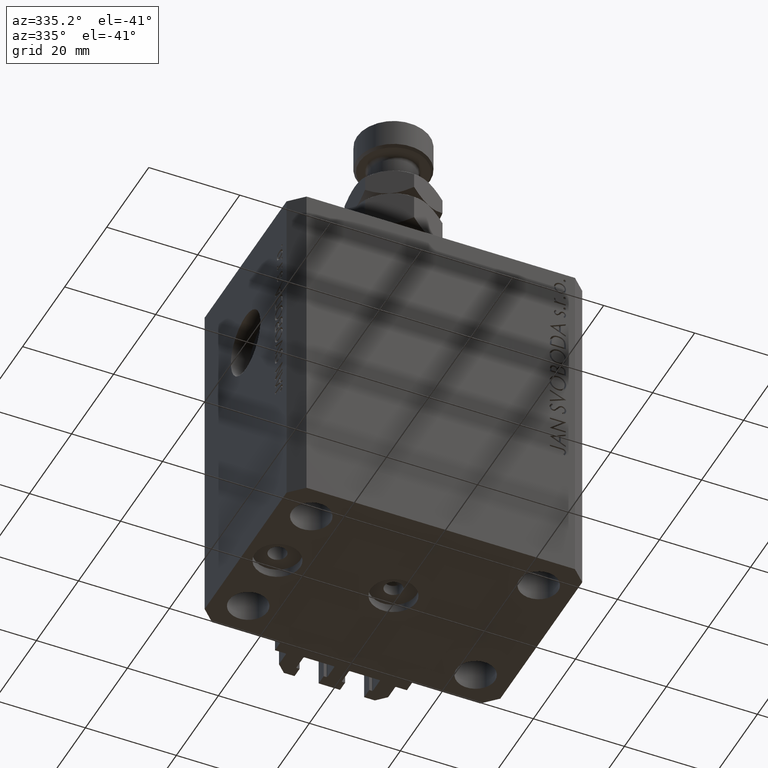
[diagram: clean part render]
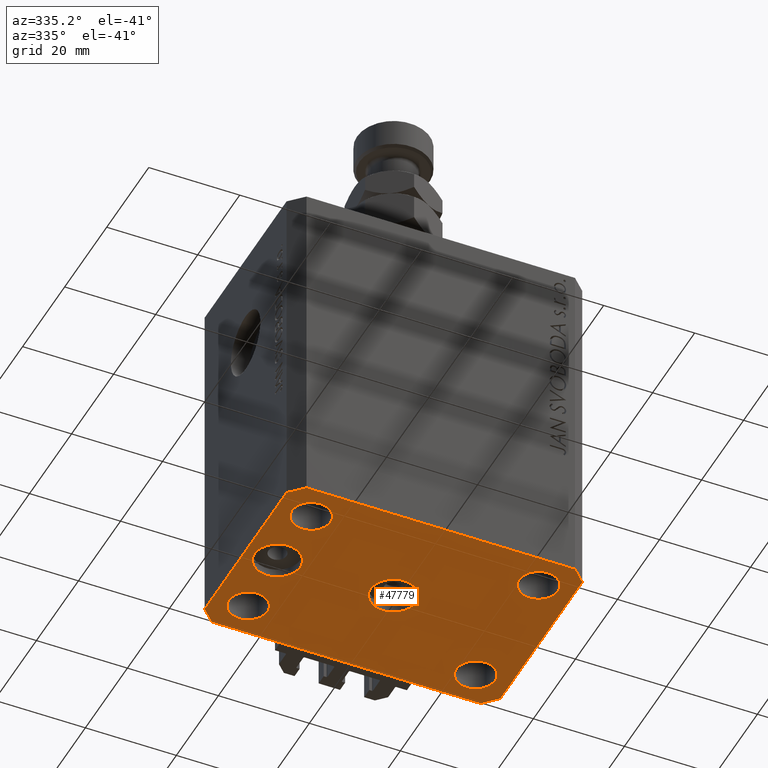
[diagram: same view with one face highlighted and labeled with its STEP entity id]
A machine part, auxiliary view. The second image highlights one B-rep face of the part: STEP entity #47779.
In plain terms, the highlighted planar face has unit normal (0, 0, 1).
Its self-contained STEP definition (entity closure, byte-faithful):
#92 = ORIENTED_EDGE ( 'NONE', *, *, #10208, .F. ) ;
#219 = DIRECTION ( 'NONE',  ( 1.000000000000000000, 1.176083712526788232E-16, 0.000000000000000000 ) ) ;
#375 = AXIS2_PLACEMENT_3D ( 'NONE', #32494, #9163, #9887 ) ;
#401 = EDGE_CURVE ( 'NONE', #1034, #27145, #42181, .T. ) ;
#1034 = VERTEX_POINT ( 'NONE', #48444 ) ;
#1094 = AXIS2_PLACEMENT_3D ( 'NONE', #18456, #33620, #14254 ) ;
#1602 = EDGE_CURVE ( 'NONE', #30552, #33709, #33550, .T. ) ;
#1994 = DIRECTION ( 'NONE',  ( -0.000000000000000000, -0.000000000000000000, -1.000000000000000000 ) ) ;
#2092 = ORIENTED_EDGE ( 'NONE', *, *, #17893, .F. ) ;
#2633 = AXIS2_PLACEMENT_3D ( 'NONE', #44843, #7336, #28950 ) ;
#2817 = AXIS2_PLACEMENT_3D ( 'NONE', #25323, #17606, #23005 ) ;
#3376 = EDGE_CURVE ( 'NONE', #33709, #30552, #10728, .T. ) ;
#3381 = ORIENTED_EDGE ( 'NONE', *, *, #401, .F. ) ;
#3778 = CIRCLE ( 'NONE', #47415, 4.249999999976314058 ) ;
#3952 = DIRECTION ( 'NONE',  ( -0.000000000000000000, -0.000000000000000000, -1.000000000000000000 ) ) ;
#4201 = LINE ( 'NONE', #11156, #36306 ) ;
#4235 = CARTESIAN_POINT ( 'NONE',  ( 24.99999999999999289, -15.00000000000000355, -77.00000000000000000 ) ) ;
#5170 = FACE_BOUND ( 'NONE', #16174, .T. ) ;
#5366 = VERTEX_POINT ( 'NONE', #27402 ) ;
#5476 = EDGE_LOOP ( 'NONE', ( #45657, #42199 ) ) ;
#5540 = LINE ( 'NONE', #32341, #40786 ) ;
#5891 = FACE_BOUND ( 'NONE', #17933, .T. ) ;
#5966 = CIRCLE ( 'NONE', #2817, 4.999999999996659561 ) ;
#6205 = AXIS2_PLACEMENT_3D ( 'NONE', #11644, #15850, #7409 ) ;
#6833 = VERTEX_POINT ( 'NONE', #30656 ) ;
#7314 = EDGE_CURVE ( 'NONE', #41250, #8508, #15872, .T. ) ;
#7336 = DIRECTION ( 'NONE',  ( -0.000000000000000000, -0.000000000000000000, -1.000000000000000000 ) ) ;
#7409 = DIRECTION ( 'NONE',  ( 1.000000000000000000, 0.000000000000000000, 0.000000000000000000 ) ) ;
#7559 = VECTOR ( 'NONE', #19885, 1000.000000000000000 ) ;
#7563 = ORIENTED_EDGE ( 'NONE', *, *, #35451, .F. ) ;
#8320 = CIRCLE ( 'NONE', #21800, 4.999999999996659561 ) ;
#8324 = CARTESIAN_POINT ( 'NONE',  ( -29.25000000002137668, 14.99999999999999645, -77.00000000000000000 ) ) ;
#8443 = DIRECTION ( 'NONE',  ( 1.000000000000000000, 0.000000000000000000, 0.000000000000000000 ) ) ;
#8508 = VERTEX_POINT ( 'NONE', #15582 ) ;
#8696 = CIRCLE ( 'NONE', #34086, 4.249999999976314058 ) ;
#8717 = CARTESIAN_POINT ( 'NONE',  ( -32.49999999999650413, 19.49999999999949907, -77.00000000000000000 ) ) ;
#8896 = VECTOR ( 'NONE', #36292, 1000.000000000000000 ) ;
#9015 = AXIS2_PLACEMENT_3D ( 'NONE', #21564, #1994, #32026 ) ;
#9163 = DIRECTION ( 'NONE',  ( -0.000000000000000000, -0.000000000000000000, -1.000000000000000000 ) ) ;
#9251 = DIRECTION ( 'NONE',  ( -0.000000000000000000, -0.000000000000000000, -1.000000000000000000 ) ) ;
#9887 = DIRECTION ( 'NONE',  ( 1.000000000000000000, 0.000000000000000000, 0.000000000000000000 ) ) ;
#10208 = EDGE_CURVE ( 'NONE', #27145, #5366, #4201, .T. ) ;
#10728 = CIRCLE ( 'NONE', #47220, 4.250000000021375790 ) ;
#11156 = CARTESIAN_POINT ( 'NONE',  ( 29.49999999999650413, -22.49999999999949196, -77.00000000000000000 ) ) ;
#11404 = EDGE_CURVE ( 'NONE', #40354, #25837, #46598, .T. ) ;
#11524 = LINE ( 'NONE', #40834, #26108 ) ;
#11644 = CARTESIAN_POINT ( 'NONE',  ( -24.99999999999999289, -15.00000000000000355, -77.00000000000000000 ) ) ;
#11990 = VERTEX_POINT ( 'NONE', #30265 ) ;
#12294 = CIRCLE ( 'NONE', #13102, 5.000000000000000000 ) ;
#12465 = VERTEX_POINT ( 'NONE', #35656 ) ;
#12645 = DIRECTION ( 'NONE',  ( -0.7071067811865344721, 0.7071067811865606734, 0.000000000000000000 ) ) ;
#13102 = AXIS2_PLACEMENT_3D ( 'NONE', #41244, #20032, #16068 ) ;
#13113 = FACE_OUTER_BOUND ( 'NONE', #40295, .T. ) ;
#13532 = CARTESIAN_POINT ( 'NONE',  ( 5.000000000000000000, 6.123233995736765296E-16, -77.00000000000000000 ) ) ;
#13797 = VECTOR ( 'NONE', #219, 1000.000000000000000 ) ;
#13969 = ORIENTED_EDGE ( 'NONE', *, *, #26927, .F. ) ;
#14254 = DIRECTION ( 'NONE',  ( 1.000000000000000000, 0.000000000000000000, 0.000000000000000000 ) ) ;
#14815 = CARTESIAN_POINT ( 'NONE',  ( 0.000000000000000000, 0.000000000000000000, -77.00000000000000000 ) ) ;
#14848 = CARTESIAN_POINT ( 'NONE',  ( -29.49999999999650413, -22.49999999999949907, -77.00000000000000000 ) ) ;
#15528 = EDGE_LOOP ( 'NONE', ( #24502, #34035 ) ) ;
#15582 = CARTESIAN_POINT ( 'NONE',  ( 29.49999999999707967, 22.49999999999952038, -77.00000000000000000 ) ) ;
#15850 = DIRECTION ( 'NONE',  ( -0.000000000000000000, -0.000000000000000000, -1.000000000000000000 ) ) ;
#15872 = LINE ( 'NONE', #42220, #35467 ) ;
#15928 = CARTESIAN_POINT ( 'NONE',  ( -20.74999999995962341, -15.00000000000000355, -77.00000000000000000 ) ) ;
#16068 = DIRECTION ( 'NONE',  ( -1.000000000000000000, 0.000000000000000000, 0.000000000000000000 ) ) ;
#16174 = EDGE_LOOP ( 'NONE', ( #24846, #20025 ) ) ;
#16580 = FACE_BOUND ( 'NONE', #15528, .T. ) ;
#16654 = EDGE_CURVE ( 'NONE', #45643, #1034, #11524, .T. ) ;
#16884 = EDGE_CURVE ( 'NONE', #6833, #18679, #8696, .T. ) ;
#17264 = ORIENTED_EDGE ( 'NONE', *, *, #33039, .F. ) ;
#17575 = VERTEX_POINT ( 'NONE', #25853 ) ;
#17606 = DIRECTION ( 'NONE',  ( 0.000000000000000000, 0.000000000000000000, -1.000000000000000000 ) ) ;
#17639 = CARTESIAN_POINT ( 'NONE',  ( -25.50000000000000000, 0.000000000000000000, -77.00000000000000000 ) ) ;
#17893 = EDGE_CURVE ( 'NONE', #17575, #19235, #20073, .T. ) ;
#17933 = EDGE_LOOP ( 'NONE', ( #41708, #39942 ) ) ;
#18136 = LINE ( 'NONE', #25363, #8896 ) ;
#18456 = CARTESIAN_POINT ( 'NONE',  ( 25.00000000000000000, 14.99999999999999289, -77.00000000000000000 ) ) ;
#18679 = VERTEX_POINT ( 'NONE', #41231 ) ;
#19235 = VERTEX_POINT ( 'NONE', #29186 ) ;
#19332 = CIRCLE ( 'NONE', #1094, 4.249999999957291053 ) ;
#19885 = DIRECTION ( 'NONE',  ( 0.000000000000000000, -1.000000000000000000, 0.000000000000000000 ) ) ;
#20025 = ORIENTED_EDGE ( 'NONE', *, *, #11404, .F. ) ;
#20032 = DIRECTION ( 'NONE',  ( 0.000000000000000000, 0.000000000000000000, -1.000000000000000000 ) ) ;
#20073 = LINE ( 'NONE', #47141, #41246 ) ;
#20296 = DIRECTION ( 'NONE',  ( 0.000000000000000000, 0.000000000000000000, 1.000000000000000000 ) ) ;
#21564 = CARTESIAN_POINT ( 'NONE',  ( 25.00000000000000000, 14.99999999999999289, -77.00000000000000000 ) ) ;
#21667 = EDGE_LOOP ( 'NONE', ( #28572, #17264 ) ) ;
#21800 = AXIS2_PLACEMENT_3D ( 'NONE', #17639, #35572, #29072 ) ;
#22407 = VERTEX_POINT ( 'NONE', #34342 ) ;
#23005 = DIRECTION ( 'NONE',  ( -1.000000000000000000, 0.000000000000000000, 0.000000000000000000 ) ) ;
#24382 = ORIENTED_EDGE ( 'NONE', *, *, #7314, .F. ) ;
#24502 = ORIENTED_EDGE ( 'NONE', *, *, #38781, .F. ) ;
#24846 = ORIENTED_EDGE ( 'NONE', *, *, #38098, .F. ) ;
#25131 = AXIS2_PLACEMENT_3D ( 'NONE', #39197, #20296, #43404 ) ;
#25323 = CARTESIAN_POINT ( 'NONE',  ( -25.50000000000000000, 0.000000000000000000, -77.00000000000000000 ) ) ;
#25363 = CARTESIAN_POINT ( 'NONE',  ( 29.49999999999707967, 22.49999999999952038, -77.00000000000000000 ) ) ;
#25837 = VERTEX_POINT ( 'NONE', #42160 ) ;
#25853 = CARTESIAN_POINT ( 'NONE',  ( -29.49999999999650413, 22.49999999999949907, -77.00000000000000000 ) ) ;
#26108 = VECTOR ( 'NONE', #29642, 1000.000000000000114 ) ;
#26927 = EDGE_CURVE ( 'NONE', #8508, #17575, #18136, .T. ) ;
#27145 = VERTEX_POINT ( 'NONE', #27813 ) ;
#27402 = CARTESIAN_POINT ( 'NONE',  ( 32.49999999999651124, -19.49999999999949196, -77.00000000000000000 ) ) ;
#27706 = DIRECTION ( 'NONE',  ( 1.000000000000000000, 0.000000000000000000, 0.000000000000000000 ) ) ;
#27813 = CARTESIAN_POINT ( 'NONE',  ( 29.49999999999650413, -22.49999999999949196, -77.00000000000000000 ) ) ;
#28244 = PLANE ( 'NONE',  #25131 ) ;
#28572 = ORIENTED_EDGE ( 'NONE', *, *, #46890, .F. ) ;
#28729 = FACE_BOUND ( 'NONE', #5476, .T. ) ;
#28950 = DIRECTION ( 'NONE',  ( 1.000000000000000000, 0.000000000000000000, 0.000000000000000000 ) ) ;
#29072 = DIRECTION ( 'NONE',  ( -1.000000000000000000, 0.000000000000000000, 0.000000000000000000 ) ) ;
#29186 = CARTESIAN_POINT ( 'NONE',  ( -32.49999999999650413, 19.49999999999949907, -77.00000000000000000 ) ) ;
#29616 = ORIENTED_EDGE ( 'NONE', *, *, #34756, .F. ) ;
#29642 = DIRECTION ( 'NONE',  ( 0.7071067811865474617, -0.7071067811865474617, 0.000000000000000000 ) ) ;
#29969 = DIRECTION ( 'NONE',  ( 0.000000000000000000, 0.000000000000000000, -1.000000000000000000 ) ) ;
#30153 = ORIENTED_EDGE ( 'NONE', *, *, #39766, .F. ) ;
#30265 = CARTESIAN_POINT ( 'NONE',  ( -29.25000000004036593, -15.00000000000000355, -77.00000000000000000 ) ) ;
#30316 = CARTESIAN_POINT ( 'NONE',  ( -32.49999999999650413, -19.49999999999949907, -77.00000000000000000 ) ) ;
#30552 = VERTEX_POINT ( 'NONE', #43394 ) ;
#30656 = CARTESIAN_POINT ( 'NONE',  ( 20.75000000002367884, -15.00000000000000355, -77.00000000000000000 ) ) ;
#31503 = DIRECTION ( 'NONE',  ( -0.7071067811865474617, -0.7071067811865474617, 0.000000000000000000 ) ) ;
#31650 = VERTEX_POINT ( 'NONE', #43176 ) ;
#32026 = DIRECTION ( 'NONE',  ( 1.000000000000000000, 0.000000000000000000, 0.000000000000000000 ) ) ;
#32341 = CARTESIAN_POINT ( 'NONE',  ( 32.49999999999651124, -19.49999999999949196, -77.00000000000000000 ) ) ;
#32494 = CARTESIAN_POINT ( 'NONE',  ( -24.99999999999999289, -15.00000000000000355, -77.00000000000000000 ) ) ;
#33039 = EDGE_CURVE ( 'NONE', #11990, #42886, #44772, .T. ) ;
#33550 = CIRCLE ( 'NONE', #2633, 4.250000000021375790 ) ;
#33620 = DIRECTION ( 'NONE',  ( -0.000000000000000000, -0.000000000000000000, -1.000000000000000000 ) ) ;
#33709 = VERTEX_POINT ( 'NONE', #8324 ) ;
#34035 = ORIENTED_EDGE ( 'NONE', *, *, #40053, .F. ) ;
#34086 = AXIS2_PLACEMENT_3D ( 'NONE', #40039, #9251, #40279 ) ;
#34342 = CARTESIAN_POINT ( 'NONE',  ( -30.49999999999665690, 0.000000000000000000, -77.00000000000000000 ) ) ;
#34756 = EDGE_CURVE ( 'NONE', #31650, #46729, #47097, .T. ) ;
#35451 = EDGE_CURVE ( 'NONE', #46729, #31650, #19332, .T. ) ;
#35460 = AXIS2_PLACEMENT_3D ( 'NONE', #14815, #29969, #41911 ) ;
#35467 = VECTOR ( 'NONE', #12645, 1000.000000000000000 ) ;
#35572 = DIRECTION ( 'NONE',  ( 0.000000000000000000, 0.000000000000000000, -1.000000000000000000 ) ) ;
#35599 = DIRECTION ( 'NONE',  ( 1.334402673828349134E-14, 1.000000000000000000, 0.000000000000000000 ) ) ;
#35656 = CARTESIAN_POINT ( 'NONE',  ( -20.50000000000333955, 6.123233995732674066E-16, -77.00000000000000000 ) ) ;
#36203 = CARTESIAN_POINT ( 'NONE',  ( 32.49999999999702993, 19.49999999999945999, -77.00000000000000000 ) ) ;
#36292 = DIRECTION ( 'NONE',  ( -1.000000000000000000, -3.528251137580330676E-16, 0.000000000000000000 ) ) ;
#36306 = VECTOR ( 'NONE', #48903, 1000.000000000000000 ) ;
#36555 = EDGE_CURVE ( 'NONE', #5366, #41250, #5540, .T. ) ;
#37807 = ORIENTED_EDGE ( 'NONE', *, *, #16654, .F. ) ;
#38098 = EDGE_CURVE ( 'NONE', #25837, #40354, #12294, .T. ) ;
#38781 = EDGE_CURVE ( 'NONE', #22407, #12465, #8320, .T. ) ;
#38991 = DIRECTION ( 'NONE',  ( -0.000000000000000000, -0.000000000000000000, -1.000000000000000000 ) ) ;
#39197 = CARTESIAN_POINT ( 'NONE',  ( 0.000000000000000000, 0.000000000000000000, -77.00000000000000000 ) ) ;
#39766 = EDGE_CURVE ( 'NONE', #19235, #45643, #46227, .T. ) ;
#39942 = ORIENTED_EDGE ( 'NONE', *, *, #3376, .F. ) ;
#40039 = CARTESIAN_POINT ( 'NONE',  ( 24.99999999999999289, -15.00000000000000355, -77.00000000000000000 ) ) ;
#40053 = EDGE_CURVE ( 'NONE', #12465, #22407, #5966, .T. ) ;
#40279 = DIRECTION ( 'NONE',  ( 1.000000000000000000, 0.000000000000000000, 0.000000000000000000 ) ) ;
#40295 = EDGE_LOOP ( 'NONE', ( #13969, #24382, #45273, #92, #3381, #37807, #30153, #2092 ) ) ;
#40354 = VERTEX_POINT ( 'NONE', #13532 ) ;
#40786 = VECTOR ( 'NONE', #35599, 1000.000000000000000 ) ;
#40834 = CARTESIAN_POINT ( 'NONE',  ( -32.49999999999650413, -19.49999999999949907, -77.00000000000000000 ) ) ;
#41231 = CARTESIAN_POINT ( 'NONE',  ( 29.24999999997631051, -15.00000000000000355, -77.00000000000000000 ) ) ;
#41244 = CARTESIAN_POINT ( 'NONE',  ( 0.000000000000000000, 0.000000000000000000, -77.00000000000000000 ) ) ;
#41246 = VECTOR ( 'NONE', #31503, 1000.000000000000114 ) ;
#41250 = VERTEX_POINT ( 'NONE', #36203 ) ;
#41451 = CARTESIAN_POINT ( 'NONE',  ( -25.00000000000000000, 14.99999999999999645, -77.00000000000000000 ) ) ;
#41708 = ORIENTED_EDGE ( 'NONE', *, *, #1602, .F. ) ;
#41911 = DIRECTION ( 'NONE',  ( -1.000000000000000000, 0.000000000000000000, 0.000000000000000000 ) ) ;
#42160 = CARTESIAN_POINT ( 'NONE',  ( -5.000000000000000000, 0.000000000000000000, -77.00000000000000000 ) ) ;
#42181 = LINE ( 'NONE', #14848, #13797 ) ;
#42199 = ORIENTED_EDGE ( 'NONE', *, *, #16884, .F. ) ;
#42220 = CARTESIAN_POINT ( 'NONE',  ( 32.49999999999702993, 19.49999999999945999, -77.00000000000000000 ) ) ;
#42886 = VERTEX_POINT ( 'NONE', #15928 ) ;
#43176 = CARTESIAN_POINT ( 'NONE',  ( 29.24999999995729283, 14.99999999999999289, -77.00000000000000000 ) ) ;
#43394 = CARTESIAN_POINT ( 'NONE',  ( -20.74999999997862687, 14.99999999999999645, -77.00000000000000000 ) ) ;
#43404 = DIRECTION ( 'NONE',  ( 1.000000000000000000, 0.000000000000000000, -0.000000000000000000 ) ) ;
#43888 = FACE_BOUND ( 'NONE', #44764, .T. ) ;
#44764 = EDGE_LOOP ( 'NONE', ( #29616, #7563 ) ) ;
#44772 = CIRCLE ( 'NONE', #375, 4.250000000040370374 ) ;
#44843 = CARTESIAN_POINT ( 'NONE',  ( -25.00000000000000000, 14.99999999999999645, -77.00000000000000000 ) ) ;
#44921 = EDGE_CURVE ( 'NONE', #18679, #6833, #3778, .T. ) ;
#45273 = ORIENTED_EDGE ( 'NONE', *, *, #36555, .F. ) ;
#45643 = VERTEX_POINT ( 'NONE', #30316 ) ;
#45657 = ORIENTED_EDGE ( 'NONE', *, *, #44921, .F. ) ;
#46227 = LINE ( 'NONE', #8717, #7559 ) ;
#46598 = CIRCLE ( 'NONE', #35460, 5.000000000000000000 ) ;
#46729 = VERTEX_POINT ( 'NONE', #47905 ) ;
#46887 = FACE_BOUND ( 'NONE', #21667, .T. ) ;
#46890 = EDGE_CURVE ( 'NONE', #42886, #11990, #48221, .T. ) ;
#47097 = CIRCLE ( 'NONE', #9015, 4.249999999957291053 ) ;
#47141 = CARTESIAN_POINT ( 'NONE',  ( -29.49999999999650413, 22.49999999999949907, -77.00000000000000000 ) ) ;
#47220 = AXIS2_PLACEMENT_3D ( 'NONE', #41451, #3952, #27706 ) ;
#47415 = AXIS2_PLACEMENT_3D ( 'NONE', #4235, #38991, #8443 ) ;
#47779 = ADVANCED_FACE ( 'NONE', ( #5170, #16580, #46887, #28729, #43888, #5891, #13113 ), #28244, .F. ) ;
#47905 = CARTESIAN_POINT ( 'NONE',  ( 20.75000000004271072, 14.99999999999999289, -77.00000000000000000 ) ) ;
#48221 = CIRCLE ( 'NONE', #6205, 4.250000000040370374 ) ;
#48444 = CARTESIAN_POINT ( 'NONE',  ( -29.49999999999650413, -22.49999999999949907, -77.00000000000000000 ) ) ;
#48903 = DIRECTION ( 'NONE',  ( 0.7071067811865483499, 0.7071067811865466846, 0.000000000000000000 ) ) ;